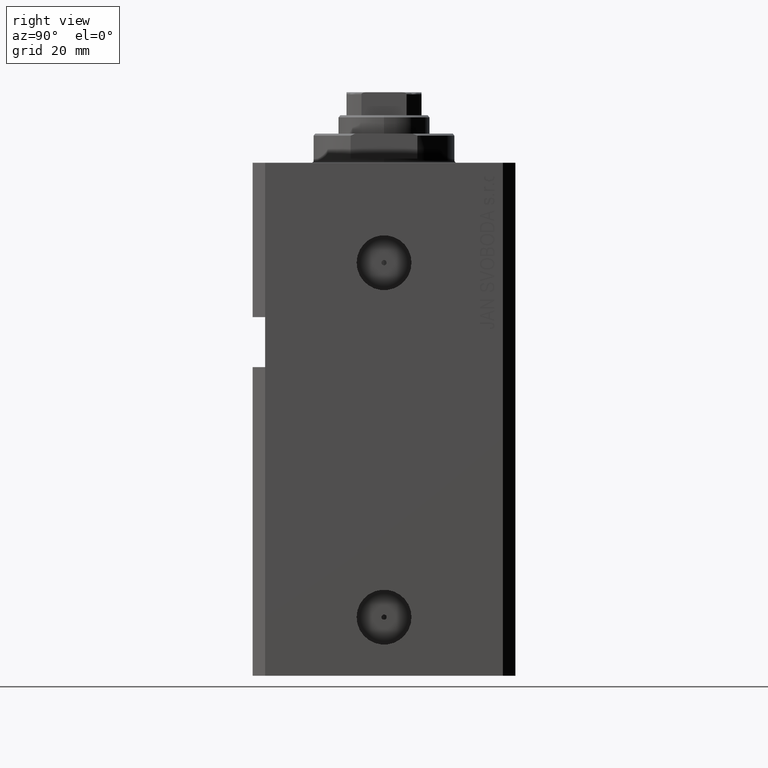
[diagram: clean part render]
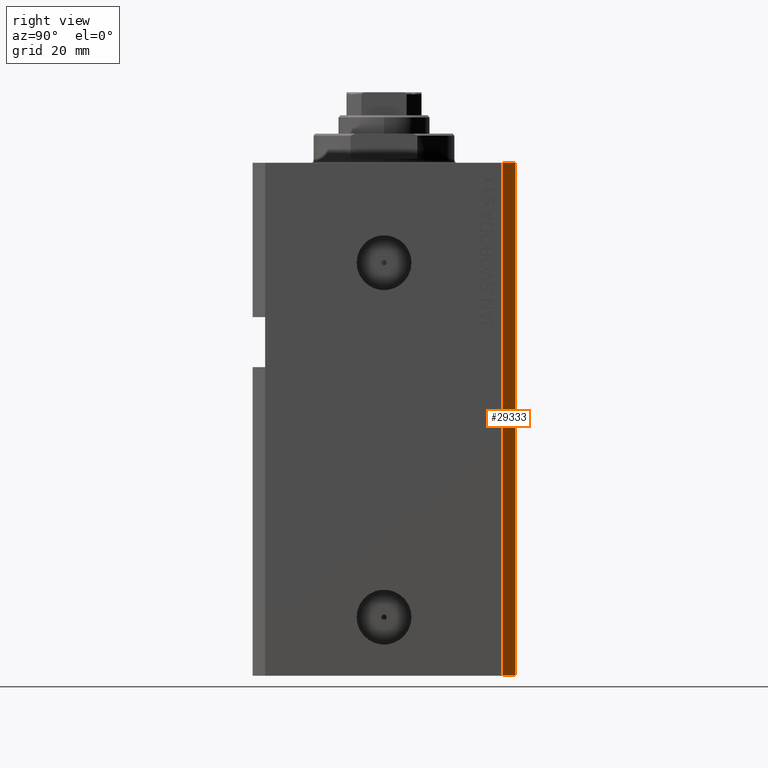
[diagram: same view with one face highlighted and labeled with its STEP entity id]
A machine part, right view. The second image highlights one B-rep face of the part: STEP entity #29333.
In plain terms, the highlighted planar face has unit normal (0.7071, 0.7071, 0).
Its self-contained STEP definition (entity closure, byte-faithful):
#282 = CARTESIAN_POINT ( 'NONE',  ( 39.50000000000056843, 31.50000000000000000, -123.0000000000000000 ) ) ;
#1451 = DIRECTION ( 'NONE',  ( -0.7071067811865356934, 0.7071067811865594521, 0.000000000000000000 ) ) ;
#1901 = CARTESIAN_POINT ( 'NONE',  ( 42.50000000000051870, 28.49999999999995381, -123.0000000000000000 ) ) ;
#3283 = VERTEX_POINT ( 'NONE', #32525 ) ;
#3945 = PLANE ( 'NONE',  #21368 ) ;
#6024 = EDGE_LOOP ( 'NONE', ( #7990, #35667, #17681, #41735 ) ) ;
#7990 = ORIENTED_EDGE ( 'NONE', *, *, #37111, .F. ) ;
#8067 = VECTOR ( 'NONE', #1451, 1000.000000000000114 ) ;
#8621 = VERTEX_POINT ( 'NONE', #40451 ) ;
#8939 = VECTOR ( 'NONE', #10939, 1000.000000000000000 ) ;
#9763 = EDGE_CURVE ( 'NONE', #14262, #8621, #18679, .T. ) ;
#10153 = CARTESIAN_POINT ( 'NONE',  ( 42.50000000000051870, 28.49999999999995381, 0.000000000000000000 ) ) ;
#10939 = DIRECTION ( 'NONE',  ( 0.000000000000000000, 0.000000000000000000, 1.000000000000000000 ) ) ;
#11194 = VERTEX_POINT ( 'NONE', #10153 ) ;
#11294 = LINE ( 'NONE', #28532, #14977 ) ;
#13196 = CARTESIAN_POINT ( 'NONE',  ( 42.50000000000051870, 28.49999999999995381, -123.0000000000000000 ) ) ;
#14109 = LINE ( 'NONE', #282, #8939 ) ;
#14249 = EDGE_CURVE ( 'NONE', #8621, #3283, #14109, .T. ) ;
#14262 = VERTEX_POINT ( 'NONE', #27955 ) ;
#14977 = VECTOR ( 'NONE', #17870, 1000.000000000000114 ) ;
#17681 = ORIENTED_EDGE ( 'NONE', *, *, #9763, .T. ) ;
#17870 = DIRECTION ( 'NONE',  ( -0.7071067811865356934, 0.7071067811865594521, 0.000000000000000000 ) ) ;
#18679 = LINE ( 'NONE', #1901, #8067 ) ;
#20496 = FACE_OUTER_BOUND ( 'NONE', #6024, .T. ) ;
#21368 = AXIS2_PLACEMENT_3D ( 'NONE', #42043, #23894, #41815 ) ;
#23894 = DIRECTION ( 'NONE',  ( 0.7071067811865594521, 0.7071067811865355823, -0.000000000000000000 ) ) ;
#25058 = VECTOR ( 'NONE', #33624, 1000.000000000000000 ) ;
#27260 = LINE ( 'NONE', #13196, #25058 ) ;
#27955 = CARTESIAN_POINT ( 'NONE',  ( 42.50000000000051870, 28.49999999999995381, -123.0000000000000000 ) ) ;
#28532 = CARTESIAN_POINT ( 'NONE',  ( 42.50000000000051870, 28.49999999999995381, 0.000000000000000000 ) ) ;
#29333 = ADVANCED_FACE ( 'NONE', ( #20496 ), #3945, .T. ) ;
#30560 = EDGE_CURVE ( 'NONE', #14262, #11194, #27260, .T. ) ;
#32525 = CARTESIAN_POINT ( 'NONE',  ( 39.50000000000056843, 31.50000000000000000, 0.000000000000000000 ) ) ;
#33624 = DIRECTION ( 'NONE',  ( 0.000000000000000000, 0.000000000000000000, 1.000000000000000000 ) ) ;
#35667 = ORIENTED_EDGE ( 'NONE', *, *, #30560, .F. ) ;
#37111 = EDGE_CURVE ( 'NONE', #11194, #3283, #11294, .T. ) ;
#40451 = CARTESIAN_POINT ( 'NONE',  ( 39.50000000000056843, 31.50000000000000000, -123.0000000000000000 ) ) ;
#41735 = ORIENTED_EDGE ( 'NONE', *, *, #14249, .T. ) ;
#41815 = DIRECTION ( 'NONE',  ( -0.7071067811865355823, 0.7071067811865594521, 0.000000000000000000 ) ) ;
#42043 = CARTESIAN_POINT ( 'NONE',  ( 42.50000000000051870, 28.49999999999995381, -123.0000000000000000 ) ) ;